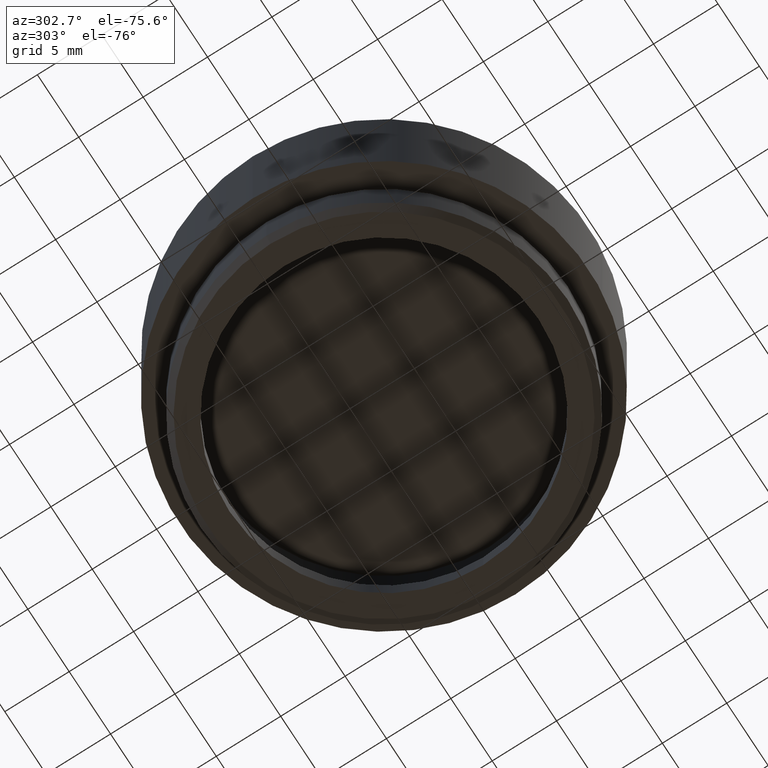
[diagram: clean part render]
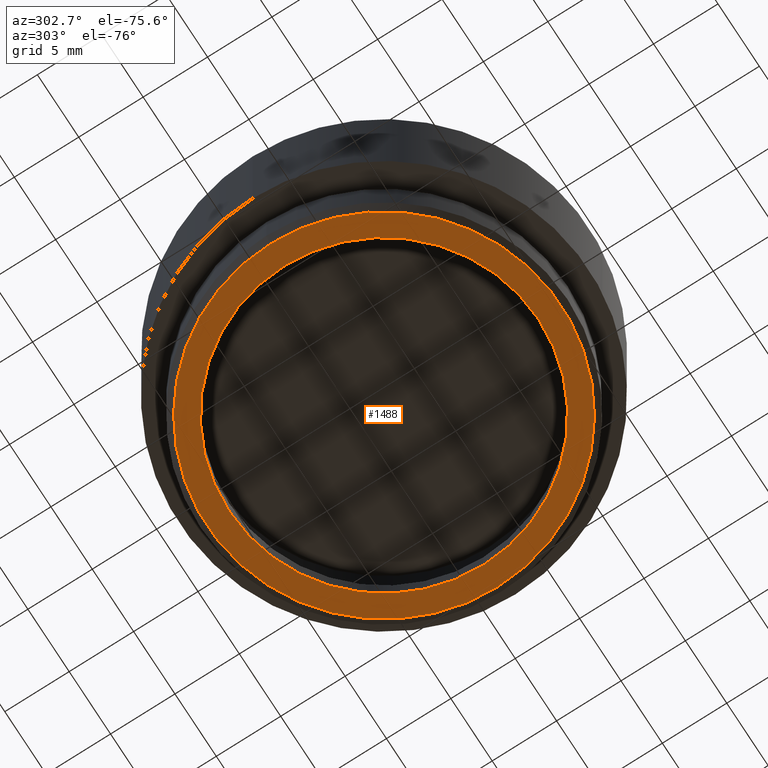
[diagram: same view with one face highlighted and labeled with its STEP entity id]
A machine part, auxiliary view. The second image highlights one B-rep face of the part: STEP entity #1488.
In plain terms, the highlighted planar face has unit normal (0, 0, 1).
Its self-contained STEP definition (entity closure, byte-faithful):
#37 = CARTESIAN_POINT ( 'NONE',  ( 0.000000000000000000, 0.000000000000000000, 0.000000000000000000 ) ) ;
#55 = DIRECTION ( 'NONE',  ( -0.000000000000000000, -0.000000000000000000, -1.000000000000000000 ) ) ;
#150 = DIRECTION ( 'NONE',  ( 0.000000000000000000, 0.000000000000000000, 1.000000000000000000 ) ) ;
#151 = CIRCLE ( 'NONE', #1441, 12.00000000000000178 ) ;
#160 = AXIS2_PLACEMENT_3D ( 'NONE', #1508, #574, #323 ) ;
#169 = CARTESIAN_POINT ( 'NONE',  ( 0.000000000000000000, 0.000000000000000000, 0.000000000000000000 ) ) ;
#203 = DIRECTION ( 'NONE',  ( 0.000000000000000000, 0.000000000000000000, 1.000000000000000000 ) ) ;
#268 = AXIS2_PLACEMENT_3D ( 'NONE', #1546, #203, #488 ) ;
#272 = CARTESIAN_POINT ( 'NONE',  ( 13.75000000000000533, 0.000000000000000000, 0.000000000000000000 ) ) ;
#273 = VERTEX_POINT ( 'NONE', #1472 ) ;
#309 = ORIENTED_EDGE ( 'NONE', *, *, #929, .T. ) ;
#323 = DIRECTION ( 'NONE',  ( 1.000000000000000000, 0.000000000000000000, 0.000000000000000000 ) ) ;
#389 = ORIENTED_EDGE ( 'NONE', *, *, #1547, .T. ) ;
#463 = CARTESIAN_POINT ( 'NONE',  ( 0.000000000000000000, 0.000000000000000000, 0.000000000000000000 ) ) ;
#488 = DIRECTION ( 'NONE',  ( 1.000000000000000000, 0.000000000000000000, 0.000000000000000000 ) ) ;
#493 = VERTEX_POINT ( 'NONE', #1689 ) ;
#552 = FACE_OUTER_BOUND ( 'NONE', #803, .T. ) ;
#574 = DIRECTION ( 'NONE',  ( -0.000000000000000000, -0.000000000000000000, -1.000000000000000000 ) ) ;
#592 = VERTEX_POINT ( 'NONE', #897 ) ;
#635 = VERTEX_POINT ( 'NONE', #272 ) ;
#678 = DIRECTION ( 'NONE',  ( 1.000000000000000000, 0.000000000000000000, -0.000000000000000000 ) ) ;
#803 = EDGE_LOOP ( 'NONE', ( #1265, #309 ) ) ;
#832 = EDGE_CURVE ( 'NONE', #635, #592, #1217, .T. ) ;
#897 = CARTESIAN_POINT ( 'NONE',  ( -13.75000000000000533, 1.714505518806294835E-15, 0.000000000000000000 ) ) ;
#916 = CIRCLE ( 'NONE', #160, 13.75000000000000533 ) ;
#926 = FACE_BOUND ( 'NONE', #1643, .T. ) ;
#929 = EDGE_CURVE ( 'NONE', #592, #635, #916, .T. ) ;
#957 = DIRECTION ( 'NONE',  ( 1.000000000000000000, 0.000000000000000000, 0.000000000000000000 ) ) ;
#986 = DIRECTION ( 'NONE',  ( 0.000000000000000000, 0.000000000000000000, 1.000000000000000000 ) ) ;
#991 = AXIS2_PLACEMENT_3D ( 'NONE', #37, #55, #957 ) ;
#997 = AXIS2_PLACEMENT_3D ( 'NONE', #169, #150, #678 ) ;
#1157 = CIRCLE ( 'NONE', #268, 12.00000000000000178 ) ;
#1202 = EDGE_CURVE ( 'NONE', #493, #273, #1157, .T. ) ;
#1217 = CIRCLE ( 'NONE', #991, 13.75000000000000533 ) ;
#1265 = ORIENTED_EDGE ( 'NONE', *, *, #832, .T. ) ;
#1344 = ORIENTED_EDGE ( 'NONE', *, *, #1202, .T. ) ;
#1348 = PLANE ( 'NONE',  #997 ) ;
#1441 = AXIS2_PLACEMENT_3D ( 'NONE', #463, #986, #1692 ) ;
#1472 = CARTESIAN_POINT ( 'NONE',  ( 12.00000000000000178, 1.469576158976824144E-15, 0.000000000000000000 ) ) ;
#1488 = ADVANCED_FACE ( 'NONE', ( #552, #926 ), #1348, .F. ) ;
#1508 = CARTESIAN_POINT ( 'NONE',  ( 0.000000000000000000, 0.000000000000000000, 0.000000000000000000 ) ) ;
#1546 = CARTESIAN_POINT ( 'NONE',  ( 0.000000000000000000, 0.000000000000000000, 0.000000000000000000 ) ) ;
#1547 = EDGE_CURVE ( 'NONE', #273, #493, #151, .T. ) ;
#1643 = EDGE_LOOP ( 'NONE', ( #1344, #389 ) ) ;
#1689 = CARTESIAN_POINT ( 'NONE',  ( -12.00000000000000178, 0.000000000000000000, 0.000000000000000000 ) ) ;
#1692 = DIRECTION ( 'NONE',  ( 1.000000000000000000, 0.000000000000000000, 0.000000000000000000 ) ) ;